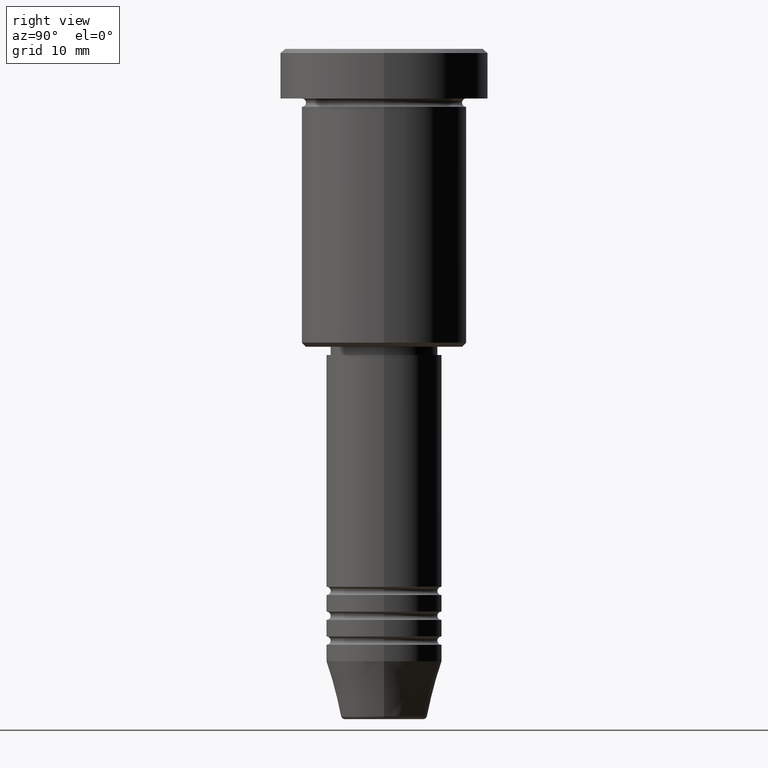
[diagram: clean part render]
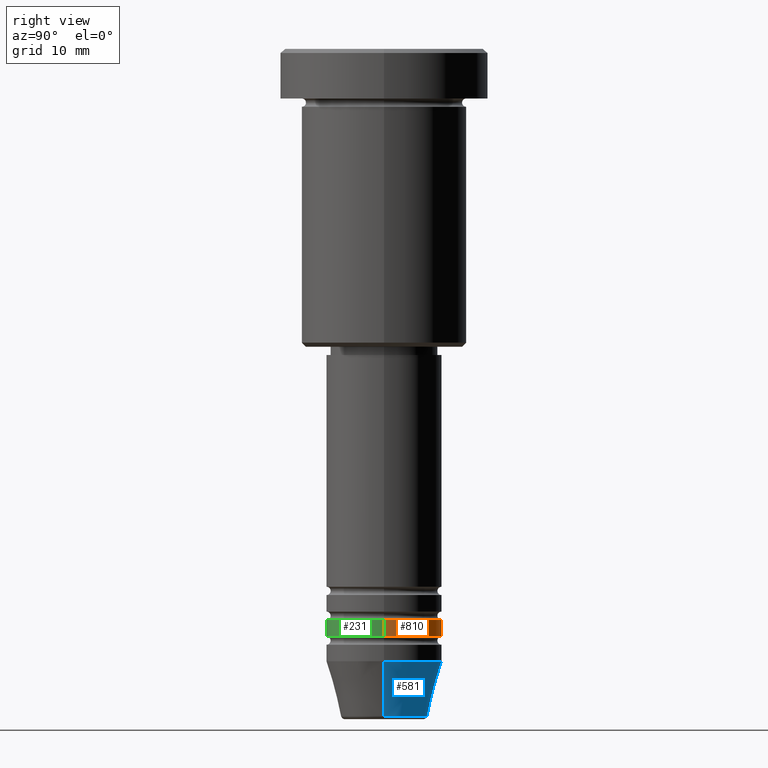
[diagram: same view with three faces highlighted in distinct colors, each labeled with its STEP entity id]
A machine part, right view with three faces highlighted in distinct colors.
Their STEP definitions:

[orange] entity #810 — the highlighted cylindrical surface (partial cylindrical patch) has radius 7 mm, axis along (-0, -0, 1).
#14 = DIRECTION ( 'NONE',  ( -0.000000000000000000, -0.000000000000000000, 1.000000000000000000 ) ) ;
#22 = CIRCLE ( 'NONE', #1028, 7.000000000000000000 ) ;
#50 = EDGE_CURVE ( 'NONE', #1046, #1039, #118, .T. ) ;
#61 = LINE ( 'NONE', #494, #703 ) ;
#71 = CARTESIAN_POINT ( 'NONE',  ( 0.000000000000000000, 0.000000000000000000, -68.99999999999997158 ) ) ;
#100 = VERTEX_POINT ( 'NONE', #686 ) ;
#111 = CYLINDRICAL_SURFACE ( 'NONE', #371, 7.000000000000000000 ) ;
#118 = CIRCLE ( 'NONE', #282, 7.000000000000000000 ) ;
#149 = LINE ( 'NONE', #706, #450 ) ;
#161 = DIRECTION ( 'NONE',  ( 1.000000000000000000, 0.000000000000000000, 0.000000000000000000 ) ) ;
#188 = CARTESIAN_POINT ( 'NONE',  ( 0.000000000000000000, 0.000000000000000000, 0.000000000000000000 ) ) ;
#209 = VERTEX_POINT ( 'NONE', #355 ) ;
#213 = EDGE_CURVE ( 'NONE', #209, #100, #22, .T. ) ;
#253 = CARTESIAN_POINT ( 'NONE',  ( 0.000000000000000000, 0.000000000000000000, -70.99999999999998579 ) ) ;
#275 = DIRECTION ( 'NONE',  ( 1.000000000000000000, 0.000000000000000000, 0.000000000000000000 ) ) ;
#282 = AXIS2_PLACEMENT_3D ( 'NONE', #71, #329, #161 ) ;
#329 = DIRECTION ( 'NONE',  ( -0.000000000000000000, -0.000000000000000000, 1.000000000000000000 ) ) ;
#355 = CARTESIAN_POINT ( 'NONE',  ( 7.000000000000000000, 0.000000000000000000, -70.99999999999998579 ) ) ;
#371 = AXIS2_PLACEMENT_3D ( 'NONE', #188, #14, #550 ) ;
#435 = ORIENTED_EDGE ( 'NONE', *, *, #950, .F. ) ;
#450 = VECTOR ( 'NONE', #622, 1000.000000000000000 ) ;
#494 = CARTESIAN_POINT ( 'NONE',  ( -7.000000000000000000, 8.572527594031473190E-16, 0.000000000000000000 ) ) ;
#516 = EDGE_LOOP ( 'NONE', ( #971, #1018, #695, #435 ) ) ;
#550 = DIRECTION ( 'NONE',  ( 1.000000000000000000, 0.000000000000000000, 0.000000000000000000 ) ) ;
#622 = DIRECTION ( 'NONE',  ( -0.000000000000000000, -0.000000000000000000, 1.000000000000000000 ) ) ;
#635 = CARTESIAN_POINT ( 'NONE',  ( 7.000000000000000000, 0.000000000000000000, -68.99999999999997158 ) ) ;
#686 = CARTESIAN_POINT ( 'NONE',  ( -7.000000000000000000, 8.572527594031473190E-16, -70.99999999999998579 ) ) ;
#695 = ORIENTED_EDGE ( 'NONE', *, *, #50, .F. ) ;
#703 = VECTOR ( 'NONE', #1152, 1000.000000000000000 ) ;
#706 = CARTESIAN_POINT ( 'NONE',  ( 7.000000000000000000, 0.000000000000000000, 0.000000000000000000 ) ) ;
#810 = ADVANCED_FACE ( 'NONE', ( #1091 ), #111, .T. ) ;
#854 = CARTESIAN_POINT ( 'NONE',  ( -7.000000000000000000, 8.572527594031473190E-16, -68.99999999999997158 ) ) ;
#914 = DIRECTION ( 'NONE',  ( -0.000000000000000000, -0.000000000000000000, 1.000000000000000000 ) ) ;
#950 = EDGE_CURVE ( 'NONE', #209, #1046, #149, .T. ) ;
#971 = ORIENTED_EDGE ( 'NONE', *, *, #213, .T. ) ;
#1018 = ORIENTED_EDGE ( 'NONE', *, *, #1019, .T. ) ;
#1019 = EDGE_CURVE ( 'NONE', #100, #1039, #61, .T. ) ;
#1028 = AXIS2_PLACEMENT_3D ( 'NONE', #253, #914, #275 ) ;
#1039 = VERTEX_POINT ( 'NONE', #854 ) ;
#1046 = VERTEX_POINT ( 'NONE', #635 ) ;
#1091 = FACE_OUTER_BOUND ( 'NONE', #516, .T. ) ;
#1152 = DIRECTION ( 'NONE',  ( -0.000000000000000000, -0.000000000000000000, 1.000000000000000000 ) ) ;

[blue] entity #581 — the highlighted conical surface has half-angle 15 deg.
#54 = CARTESIAN_POINT ( 'NONE',  ( -7.000000000000000000, 8.572527594031473190E-16, -74.00000000000000000 ) ) ;
#55 = VERTEX_POINT ( 'NONE', #875 ) ;
#78 = CARTESIAN_POINT ( 'NONE',  ( 0.000000000000000000, 0.000000000000000000, -74.00000000000000000 ) ) ;
#94 = DIRECTION ( 'NONE',  ( 1.000000000000000000, 0.000000000000000000, 0.000000000000000000 ) ) ;
#182 = VECTOR ( 'NONE', #952, 1000.000000000000000 ) ;
#184 = VECTOR ( 'NONE', #476, 1000.000000000000000 ) ;
#218 = CIRCLE ( 'NONE', #965, 5.223655072137193045 ) ;
#299 = ORIENTED_EDGE ( 'NONE', *, *, #1035, .T. ) ;
#308 = LINE ( 'NONE', #571, #182 ) ;
#356 = FACE_OUTER_BOUND ( 'NONE', #1156, .T. ) ;
#389 = VERTEX_POINT ( 'NONE', #54 ) ;
#453 = VERTEX_POINT ( 'NONE', #749 ) ;
#457 = EDGE_CURVE ( 'NONE', #453, #389, #1106, .T. ) ;
#470 = EDGE_CURVE ( 'NONE', #55, #782, #308, .T. ) ;
#476 = DIRECTION ( 'NONE',  ( -0.2588190451025213501, 3.169619151431772337E-17, 0.9659258262890680902 ) ) ;
#571 = CARTESIAN_POINT ( 'NONE',  ( 7.000000000000000000, 0.000000000000000000, -74.00000000000000000 ) ) ;
#578 = ORIENTED_EDGE ( 'NONE', *, *, #711, .F. ) ;
#581 = ADVANCED_FACE ( 'NONE', ( #356 ), #1058, .T. ) ;
#583 = CARTESIAN_POINT ( 'NONE',  ( 0.000000000000000000, 0.000000000000000000, -80.62940952255124216 ) ) ;
#662 = CARTESIAN_POINT ( 'NONE',  ( -7.000000000000000000, 8.572527594031473190E-16, -74.00000000000000000 ) ) ;
#674 = CIRCLE ( 'NONE', #736, 7.000000000000000000 ) ;
#683 = DIRECTION ( 'NONE',  ( 1.000000000000000000, 0.000000000000000000, 0.000000000000000000 ) ) ;
#711 = EDGE_CURVE ( 'NONE', #782, #389, #674, .T. ) ;
#715 = ORIENTED_EDGE ( 'NONE', *, *, #470, .F. ) ;
#736 = AXIS2_PLACEMENT_3D ( 'NONE', #78, #1159, #814 ) ;
#749 = CARTESIAN_POINT ( 'NONE',  ( -5.223655072137193045, 7.484830028987060174E-16, -80.62940952255124216 ) ) ;
#782 = VERTEX_POINT ( 'NONE', #890 ) ;
#814 = DIRECTION ( 'NONE',  ( 1.000000000000000000, 0.000000000000000000, 0.000000000000000000 ) ) ;
#855 = ORIENTED_EDGE ( 'NONE', *, *, #457, .T. ) ;
#868 = DIRECTION ( 'NONE',  ( -0.000000000000000000, -0.000000000000000000, 1.000000000000000000 ) ) ;
#875 = CARTESIAN_POINT ( 'NONE',  ( 5.223655072137193045, 0.000000000000000000, -80.62940952255124216 ) ) ;
#890 = CARTESIAN_POINT ( 'NONE',  ( 7.000000000000000000, 0.000000000000000000, -74.00000000000000000 ) ) ;
#911 = CARTESIAN_POINT ( 'NONE',  ( 0.000000000000000000, 0.000000000000000000, -74.00000000000000000 ) ) ;
#940 = AXIS2_PLACEMENT_3D ( 'NONE', #911, #1182, #94 ) ;
#952 = DIRECTION ( 'NONE',  ( 0.2588190451025213501, 0.000000000000000000, 0.9659258262890680902 ) ) ;
#965 = AXIS2_PLACEMENT_3D ( 'NONE', #583, #868, #683 ) ;
#1035 = EDGE_CURVE ( 'NONE', #55, #453, #218, .T. ) ;
#1058 = CONICAL_SURFACE ( 'NONE', #940, 7.000000000000000000, 0.2617993877991500740 ) ;
#1106 = LINE ( 'NONE', #662, #184 ) ;
#1156 = EDGE_LOOP ( 'NONE', ( #299, #855, #578, #715 ) ) ;
#1159 = DIRECTION ( 'NONE',  ( -0.000000000000000000, -0.000000000000000000, 1.000000000000000000 ) ) ;
#1182 = DIRECTION ( 'NONE',  ( -0.000000000000000000, -0.000000000000000000, 1.000000000000000000 ) ) ;

[green] entity #231 — the highlighted cylindrical surface (partial cylindrical patch) has radius 7 mm, axis along (-0, -0, 1).
#40 = ORIENTED_EDGE ( 'NONE', *, *, #950, .T. ) ;
#61 = LINE ( 'NONE', #494, #703 ) ;
#84 = DIRECTION ( 'NONE',  ( -0.000000000000000000, -0.000000000000000000, 1.000000000000000000 ) ) ;
#97 = DIRECTION ( 'NONE',  ( 1.000000000000000000, 0.000000000000000000, 0.000000000000000000 ) ) ;
#100 = VERTEX_POINT ( 'NONE', #686 ) ;
#149 = LINE ( 'NONE', #706, #450 ) ;
#164 = AXIS2_PLACEMENT_3D ( 'NONE', #438, #803, #521 ) ;
#209 = VERTEX_POINT ( 'NONE', #355 ) ;
#231 = ADVANCED_FACE ( 'NONE', ( #728 ), #649, .T. ) ;
#341 = EDGE_CURVE ( 'NONE', #1039, #1046, #906, .T. ) ;
#355 = CARTESIAN_POINT ( 'NONE',  ( 7.000000000000000000, 0.000000000000000000, -70.99999999999998579 ) ) ;
#399 = DIRECTION ( 'NONE',  ( 1.000000000000000000, 0.000000000000000000, 0.000000000000000000 ) ) ;
#438 = CARTESIAN_POINT ( 'NONE',  ( 0.000000000000000000, 0.000000000000000000, -68.99999999999997158 ) ) ;
#450 = VECTOR ( 'NONE', #622, 1000.000000000000000 ) ;
#494 = CARTESIAN_POINT ( 'NONE',  ( -7.000000000000000000, 8.572527594031473190E-16, 0.000000000000000000 ) ) ;
#521 = DIRECTION ( 'NONE',  ( 1.000000000000000000, 0.000000000000000000, 0.000000000000000000 ) ) ;
#622 = DIRECTION ( 'NONE',  ( -0.000000000000000000, -0.000000000000000000, 1.000000000000000000 ) ) ;
#635 = CARTESIAN_POINT ( 'NONE',  ( 7.000000000000000000, 0.000000000000000000, -68.99999999999997158 ) ) ;
#649 = CYLINDRICAL_SURFACE ( 'NONE', #886, 7.000000000000000000 ) ;
#677 = ORIENTED_EDGE ( 'NONE', *, *, #341, .F. ) ;
#686 = CARTESIAN_POINT ( 'NONE',  ( -7.000000000000000000, 8.572527594031473190E-16, -70.99999999999998579 ) ) ;
#703 = VECTOR ( 'NONE', #1152, 1000.000000000000000 ) ;
#706 = CARTESIAN_POINT ( 'NONE',  ( 7.000000000000000000, 0.000000000000000000, 0.000000000000000000 ) ) ;
#728 = FACE_OUTER_BOUND ( 'NONE', #1088, .T. ) ;
#803 = DIRECTION ( 'NONE',  ( -0.000000000000000000, -0.000000000000000000, 1.000000000000000000 ) ) ;
#854 = CARTESIAN_POINT ( 'NONE',  ( -7.000000000000000000, 8.572527594031473190E-16, -68.99999999999997158 ) ) ;
#886 = AXIS2_PLACEMENT_3D ( 'NONE', #1008, #988, #97 ) ;
#906 = CIRCLE ( 'NONE', #164, 7.000000000000000000 ) ;
#910 = CIRCLE ( 'NONE', #1059, 7.000000000000000000 ) ;
#946 = ORIENTED_EDGE ( 'NONE', *, *, #958, .T. ) ;
#950 = EDGE_CURVE ( 'NONE', #209, #1046, #149, .T. ) ;
#958 = EDGE_CURVE ( 'NONE', #100, #209, #910, .T. ) ;
#963 = CARTESIAN_POINT ( 'NONE',  ( 0.000000000000000000, 0.000000000000000000, -70.99999999999998579 ) ) ;
#988 = DIRECTION ( 'NONE',  ( -0.000000000000000000, -0.000000000000000000, 1.000000000000000000 ) ) ;
#1008 = CARTESIAN_POINT ( 'NONE',  ( 0.000000000000000000, 0.000000000000000000, 0.000000000000000000 ) ) ;
#1019 = EDGE_CURVE ( 'NONE', #100, #1039, #61, .T. ) ;
#1039 = VERTEX_POINT ( 'NONE', #854 ) ;
#1046 = VERTEX_POINT ( 'NONE', #635 ) ;
#1059 = AXIS2_PLACEMENT_3D ( 'NONE', #963, #84, #399 ) ;
#1069 = ORIENTED_EDGE ( 'NONE', *, *, #1019, .F. ) ;
#1088 = EDGE_LOOP ( 'NONE', ( #1069, #946, #40, #677 ) ) ;
#1152 = DIRECTION ( 'NONE',  ( -0.000000000000000000, -0.000000000000000000, 1.000000000000000000 ) ) ;